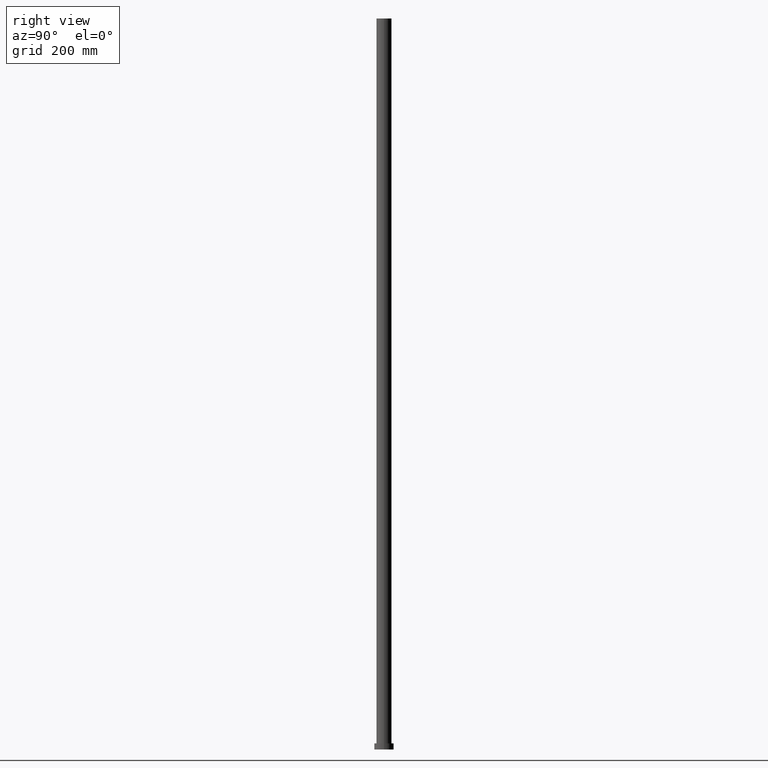
[diagram: clean part render]
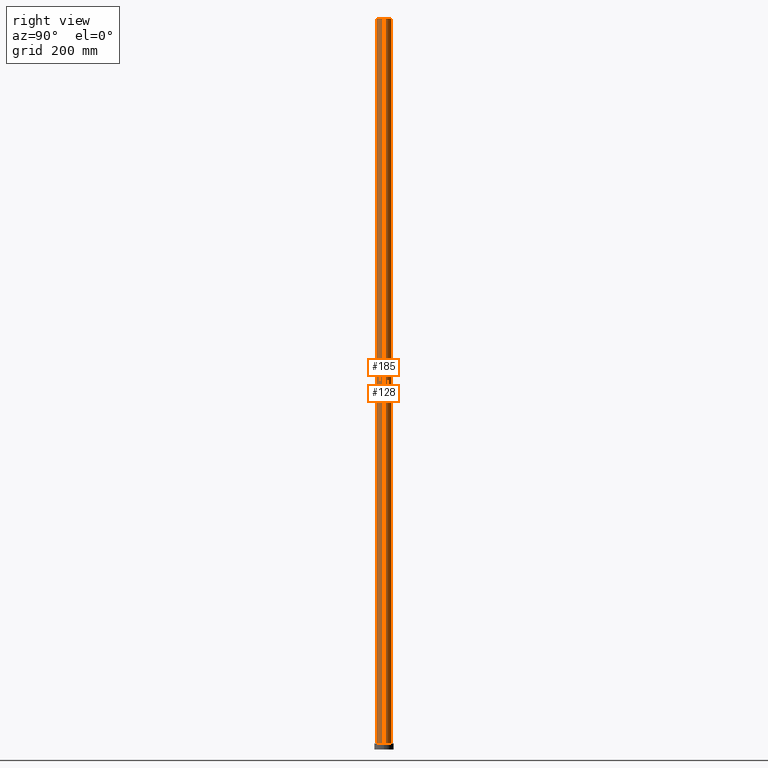
[diagram: same view with one multi-face feature highlighted, each face labeled with its STEP entity id]
A machine part, right view. The highlighted faces form ONE feature: a constant-radius fillet chain: 2 tangent blend faces with common blend radius 12.5 mm. The faces share edges in the B-rep.
Their STEP definitions:
[1] entity #128 (Cylinder):
#1 = EDGE_LOOP ( 'NONE', ( #230, #235, #72, #237 ) ) ;
#5 = CARTESIAN_POINT ( 'NONE',  ( -12.50000000000000000, 0.000000000000000000, 1200.000000000000000 ) ) ;
#8 = DIRECTION ( 'NONE',  ( -1.000000000000000000, 0.000000000000000000, 0.000000000000000000 ) ) ;
#10 = AXIS2_PLACEMENT_3D ( 'NONE', #117, #175, #41 ) ;
#13 = CARTESIAN_POINT ( 'NONE',  ( -12.50000000000000000, 0.000000000000000000, 1200.000000000000000 ) ) ;
#14 = EDGE_CURVE ( 'NONE', #96, #74, #189, .T. ) ;
#29 = CARTESIAN_POINT ( 'NONE',  ( 12.50000000000000000, 1.530808498934191521E-15, 1200.000000000000000 ) ) ;
#31 = FACE_OUTER_BOUND ( 'NONE', #1, .T. ) ;
#40 = CIRCLE ( 'NONE', #10, 12.50000000000000000 ) ;
#41 = DIRECTION ( 'NONE',  ( 1.000000000000000000, 0.000000000000000000, 0.000000000000000000 ) ) ;
#43 = LINE ( 'NONE', #13, #137 ) ;
#72 = ORIENTED_EDGE ( 'NONE', *, *, #14, .T. ) ;
#74 = VERTEX_POINT ( 'NONE', #184 ) ;
#84 = DIRECTION ( 'NONE',  ( -0.000000000000000000, -0.000000000000000000, -1.000000000000000000 ) ) ;
#91 = VERTEX_POINT ( 'NONE', #216 ) ;
#96 = VERTEX_POINT ( 'NONE', #122 ) ;
#101 = DIRECTION ( 'NONE',  ( -0.000000000000000000, -0.000000000000000000, -1.000000000000000000 ) ) ;
#103 = EDGE_CURVE ( 'NONE', #91, #132, #40, .T. ) ;
#104 = LINE ( 'NONE', #29, #146 ) ;
#106 = EDGE_CURVE ( 'NONE', #91, #96, #104, .T. ) ;
#117 = CARTESIAN_POINT ( 'NONE',  ( 0.000000000000000000, 0.000000000000000000, 1200.000000000000000 ) ) ;
#118 = AXIS2_PLACEMENT_3D ( 'NONE', #211, #151, #232 ) ;
#122 = CARTESIAN_POINT ( 'NONE',  ( 12.50000000000000000, 1.530808498934191521E-15, 10.00000000000000000 ) ) ;
#128 = ADVANCED_FACE ( 'NONE', ( #31 ), #161, .T. ) ;
#132 = VERTEX_POINT ( 'NONE', #5 ) ;
#137 = VECTOR ( 'NONE', #224, 1000.000000000000000 ) ;
#146 = VECTOR ( 'NONE', #101, 1000.000000000000000 ) ;
#151 = DIRECTION ( 'NONE',  ( 0.000000000000000000, 0.000000000000000000, 1.000000000000000000 ) ) ;
#161 = CYLINDRICAL_SURFACE ( 'NONE', #182, 12.50000000000000000 ) ;
#175 = DIRECTION ( 'NONE',  ( 0.000000000000000000, 0.000000000000000000, 1.000000000000000000 ) ) ;
#179 = CARTESIAN_POINT ( 'NONE',  ( 0.000000000000000000, 0.000000000000000000, 1200.000000000000000 ) ) ;
#182 = AXIS2_PLACEMENT_3D ( 'NONE', #179, #84, #8 ) ;
#184 = CARTESIAN_POINT ( 'NONE',  ( -12.50000000000000000, 0.000000000000000000, 10.00000000000000000 ) ) ;
#189 = CIRCLE ( 'NONE', #118, 12.50000000000000000 ) ;
#196 = EDGE_CURVE ( 'NONE', #132, #74, #43, .T. ) ;
#211 = CARTESIAN_POINT ( 'NONE',  ( 0.000000000000000000, 0.000000000000000000, 10.00000000000000000 ) ) ;
#216 = CARTESIAN_POINT ( 'NONE',  ( 12.50000000000000000, 1.530808498934191521E-15, 1200.000000000000000 ) ) ;
#224 = DIRECTION ( 'NONE',  ( -0.000000000000000000, -0.000000000000000000, -1.000000000000000000 ) ) ;
#230 = ORIENTED_EDGE ( 'NONE', *, *, #103, .F. ) ;
#232 = DIRECTION ( 'NONE',  ( 1.000000000000000000, 0.000000000000000000, 0.000000000000000000 ) ) ;
#235 = ORIENTED_EDGE ( 'NONE', *, *, #106, .T. ) ;
#237 = ORIENTED_EDGE ( 'NONE', *, *, #196, .F. ) ;
[2] entity #185 (Cylinder):
#5 = CARTESIAN_POINT ( 'NONE',  ( -12.50000000000000000, 0.000000000000000000, 1200.000000000000000 ) ) ;
#11 = CARTESIAN_POINT ( 'NONE',  ( 0.000000000000000000, 0.000000000000000000, 10.00000000000000000 ) ) ;
#13 = CARTESIAN_POINT ( 'NONE',  ( -12.50000000000000000, 0.000000000000000000, 1200.000000000000000 ) ) ;
#29 = CARTESIAN_POINT ( 'NONE',  ( 12.50000000000000000, 1.530808498934191521E-15, 1200.000000000000000 ) ) ;
#32 = DIRECTION ( 'NONE',  ( 1.000000000000000000, 0.000000000000000000, 0.000000000000000000 ) ) ;
#38 = ORIENTED_EDGE ( 'NONE', *, *, #196, .T. ) ;
#43 = LINE ( 'NONE', #13, #137 ) ;
#49 = CARTESIAN_POINT ( 'NONE',  ( 0.000000000000000000, 0.000000000000000000, 1200.000000000000000 ) ) ;
#74 = VERTEX_POINT ( 'NONE', #184 ) ;
#81 = AXIS2_PLACEMENT_3D ( 'NONE', #49, #203, #32 ) ;
#88 = EDGE_CURVE ( 'NONE', #74, #96, #227, .T. ) ;
#91 = VERTEX_POINT ( 'NONE', #216 ) ;
#95 = EDGE_LOOP ( 'NONE', ( #129, #254, #38, #168 ) ) ;
#96 = VERTEX_POINT ( 'NONE', #122 ) ;
#100 = CARTESIAN_POINT ( 'NONE',  ( 0.000000000000000000, 0.000000000000000000, 1200.000000000000000 ) ) ;
#101 = DIRECTION ( 'NONE',  ( -0.000000000000000000, -0.000000000000000000, -1.000000000000000000 ) ) ;
#104 = LINE ( 'NONE', #29, #146 ) ;
#106 = EDGE_CURVE ( 'NONE', #91, #96, #104, .T. ) ;
#122 = CARTESIAN_POINT ( 'NONE',  ( 12.50000000000000000, 1.530808498934191521E-15, 10.00000000000000000 ) ) ;
#129 = ORIENTED_EDGE ( 'NONE', *, *, #106, .F. ) ;
#132 = VERTEX_POINT ( 'NONE', #5 ) ;
#137 = VECTOR ( 'NONE', #224, 1000.000000000000000 ) ;
#146 = VECTOR ( 'NONE', #101, 1000.000000000000000 ) ;
#150 = AXIS2_PLACEMENT_3D ( 'NONE', #11, #221, #219 ) ;
#155 = CIRCLE ( 'NONE', #81, 12.50000000000000000 ) ;
#168 = ORIENTED_EDGE ( 'NONE', *, *, #88, .T. ) ;
#180 = FACE_OUTER_BOUND ( 'NONE', #95, .T. ) ;
#184 = CARTESIAN_POINT ( 'NONE',  ( -12.50000000000000000, 0.000000000000000000, 10.00000000000000000 ) ) ;
#185 = ADVANCED_FACE ( 'NONE', ( #180 ), #239, .T. ) ;
#196 = EDGE_CURVE ( 'NONE', #132, #74, #43, .T. ) ;
#203 = DIRECTION ( 'NONE',  ( 0.000000000000000000, 0.000000000000000000, 1.000000000000000000 ) ) ;
#216 = CARTESIAN_POINT ( 'NONE',  ( 12.50000000000000000, 1.530808498934191521E-15, 1200.000000000000000 ) ) ;
#219 = DIRECTION ( 'NONE',  ( 1.000000000000000000, 0.000000000000000000, 0.000000000000000000 ) ) ;
#221 = DIRECTION ( 'NONE',  ( 0.000000000000000000, 0.000000000000000000, 1.000000000000000000 ) ) ;
#222 = AXIS2_PLACEMENT_3D ( 'NONE', #100, #243, #245 ) ;
#224 = DIRECTION ( 'NONE',  ( -0.000000000000000000, -0.000000000000000000, -1.000000000000000000 ) ) ;
#227 = CIRCLE ( 'NONE', #150, 12.50000000000000000 ) ;
#229 = EDGE_CURVE ( 'NONE', #132, #91, #155, .T. ) ;
#239 = CYLINDRICAL_SURFACE ( 'NONE', #222, 12.50000000000000000 ) ;
#243 = DIRECTION ( 'NONE',  ( -0.000000000000000000, -0.000000000000000000, -1.000000000000000000 ) ) ;
#245 = DIRECTION ( 'NONE',  ( -1.000000000000000000, 0.000000000000000000, 0.000000000000000000 ) ) ;
#254 = ORIENTED_EDGE ( 'NONE', *, *, #229, .F. ) ;